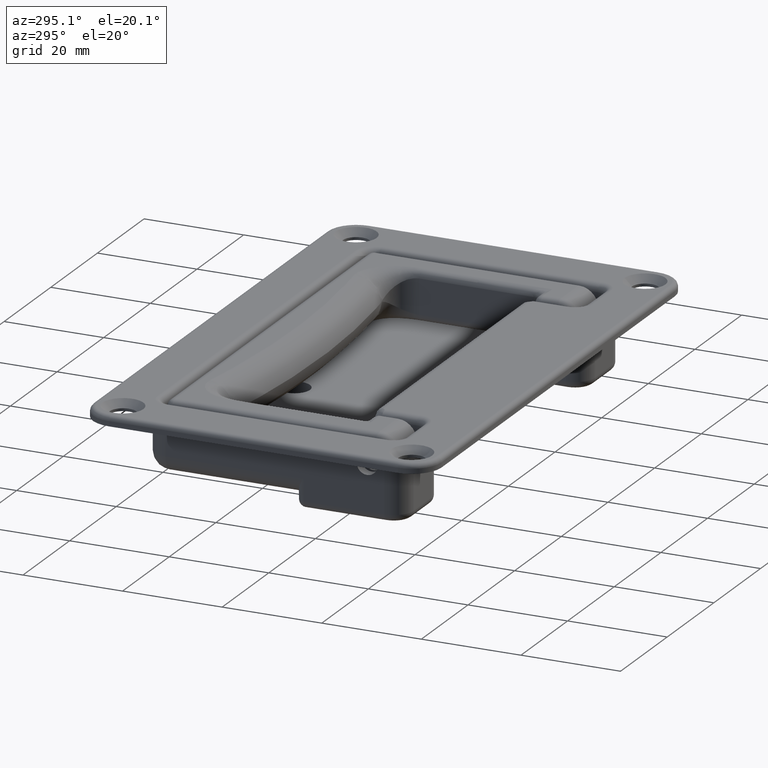
[diagram: clean part render]
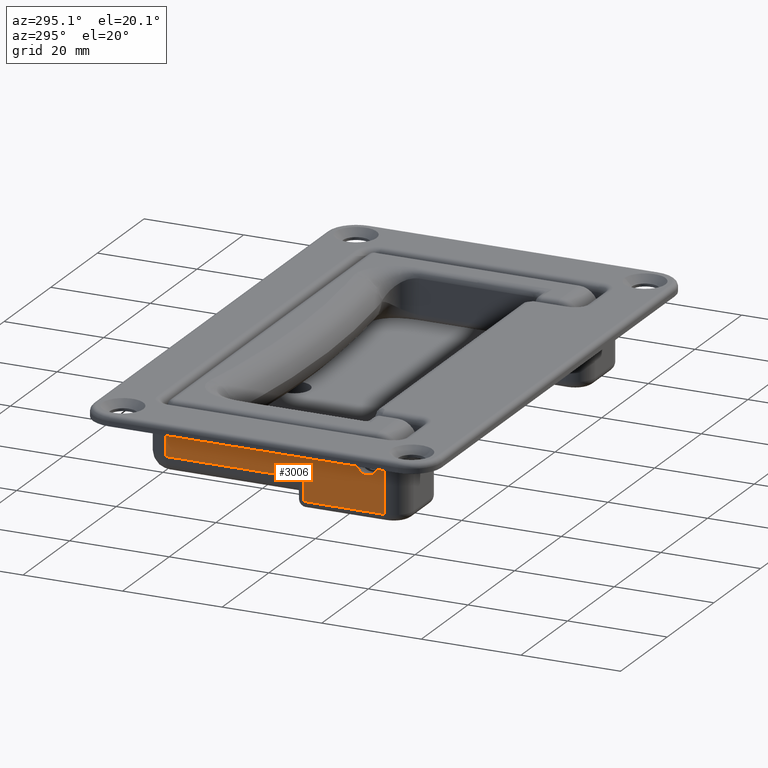
[diagram: same view with one face highlighted and labeled with its STEP entity id]
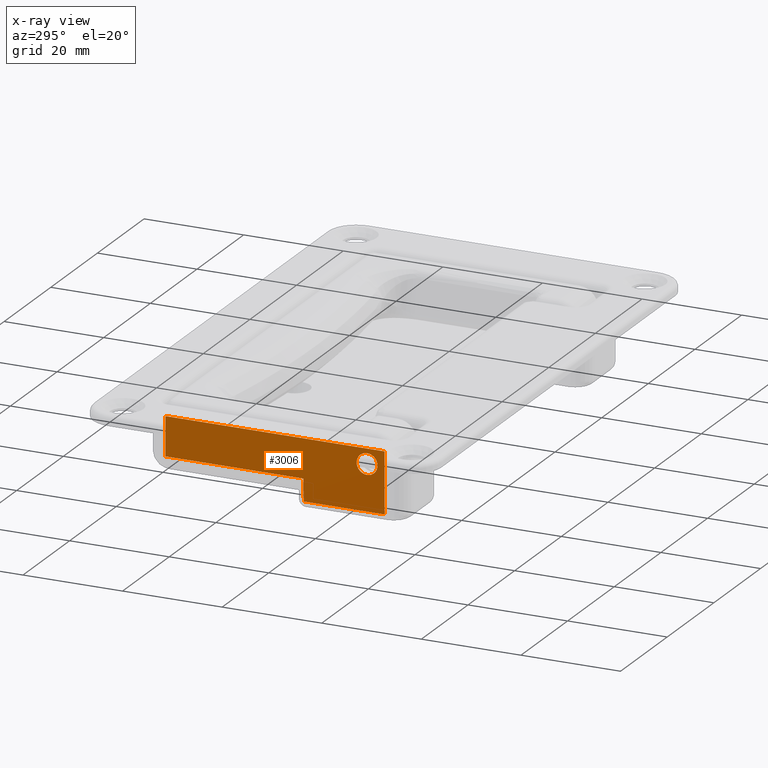
[diagram: x-ray of the same camera — body ghosted, the highlighted face saturated]
A machine part, auxiliary view. The second image highlights one B-rep face of the part: STEP entity #3006.
The next image is the same camera in x-ray: the body ghosted, the highlighted face saturated — about 0% of this face is hidden behind the body in this view.
In plain terms, the highlighted planar face has unit normal (1, 0, 0).
Its self-contained STEP definition (entity closure, byte-faithful):
#206=LINE('',#8297,#396);
#213=LINE('',#8334,#403);
#219=LINE('',#8349,#409);
#253=LINE('',#8463,#443);
#304=LINE('',#8669,#494);
#305=LINE('',#8670,#495);
#396=VECTOR('',#3812,16.2173788982493);
#403=VECTOR('',#3843,4.4006702433932);
#409=VECTOR('',#3859,12.2);
#443=VECTOR('',#3957,44.);
#494=VECTOR('',#4156,7.8);
#495=VECTOR('',#4157,27.7058188092387);
#549=PLANE('',#3341);
#586=FACE_BOUND('',#964,.T.);
#742=FACE_OUTER_BOUND('',#963,.T.);
#963=EDGE_LOOP('',(#2575,#2576,#2577,#2578,#2579,#2580));
#964=EDGE_LOOP('',(#2581));
#1188=CIRCLE('',#3342,2.1);
#1334=VERTEX_POINT('',#8290);
#1336=VERTEX_POINT('',#8295);
#1343=VERTEX_POINT('',#8321);
#1348=VERTEX_POINT('',#8347);
#1396=VERTEX_POINT('',#8461);
#1459=VERTEX_POINT('',#8668);
#1460=VERTEX_POINT('',#8671);
#1682=EDGE_CURVE('',#1336,#1334,#206,.T.);
#1697=EDGE_CURVE('',#1334,#1343,#213,.T.);
#1705=EDGE_CURVE('',#1336,#1348,#219,.T.);
#1761=EDGE_CURVE('',#1396,#1348,#253,.T.);
#1858=EDGE_CURVE('',#1459,#1396,#304,.T.);
#1859=EDGE_CURVE('',#1459,#1343,#305,.T.);
#1860=EDGE_CURVE('',#1460,#1460,#1188,.T.);
#2575=ORIENTED_EDGE('',*,*,#1682,.F.);
#2576=ORIENTED_EDGE('',*,*,#1705,.T.);
#2577=ORIENTED_EDGE('',*,*,#1761,.F.);
#2578=ORIENTED_EDGE('',*,*,#1858,.F.);
#2579=ORIENTED_EDGE('',*,*,#1859,.T.);
#2580=ORIENTED_EDGE('',*,*,#1697,.F.);
#2581=ORIENTED_EDGE('',*,*,#1860,.F.);
#3006=ADVANCED_FACE('',(#742,#586),#549,.F.);
#3341=AXIS2_PLACEMENT_3D('',#8667,#4154,#4155);
#3342=AXIS2_PLACEMENT_3D('',#8672,#4158,#4159);
#3812=DIRECTION('',(0.,1.,0.));
#3843=DIRECTION('',(0.,0.0174524064372835,0.999847695156391));
#3859=DIRECTION('',(0.,-2.175461214679E-10,1.));
#3957=DIRECTION('',(0.,-1.,0.));
#4154=DIRECTION('center_axis',(1.,0.,0.));
#4155=DIRECTION('ref_axis',(0.,0.,1.));
#4156=DIRECTION('',(0.,5.350255910822E-10,1.));
#4157=DIRECTION('',(0.,-1.,0.));
#4158=DIRECTION('center_axis',(-1.,0.,0.));
#4159=DIRECTION('ref_axis',(0.,0.,1.));
#8290=CARTESIAN_POINT('',(8.24999999999983,-73.7826210990933,-69.2));
#8295=CARTESIAN_POINT('',(8.24999999999983,-89.9999999973426,-69.2));
#8297=CARTESIAN_POINT('',(8.24999999999983,-69.0499999999998,-69.2));
#8321=CARTESIAN_POINT('',(8.24999999999983,-73.7058188134092,-64.8));
#8334=CARTESIAN_POINT('',(8.24999999999983,-73.794021267148,-69.8531151904357));
#8347=CARTESIAN_POINT('',(8.24999999999983,-90.,-57.));
#8349=CARTESIAN_POINT('',(8.24999999999983,-89.99999999793,-66.5));
#8461=CARTESIAN_POINT('',(8.24999999999983,-46.,-57.));
#8463=CARTESIAN_POINT('',(8.24999999999983,-46.,-57.));
#8667=CARTESIAN_POINT('Origin',(8.24999999999983,-46.,-70.));
#8668=CARTESIAN_POINT('',(8.24999999999983,-46.0000000041705,-64.8));
#8669=CARTESIAN_POINT('',(8.24999999999983,-46.00000000508,-66.5));
#8670=CARTESIAN_POINT('',(8.24999999999983,-72.2666830485921,-64.8));
#8671=CARTESIAN_POINT('',(8.24999999999983,-86.5,-57.9));
#8672=CARTESIAN_POINT('Origin',(8.24999999999983,-86.5,-60.));